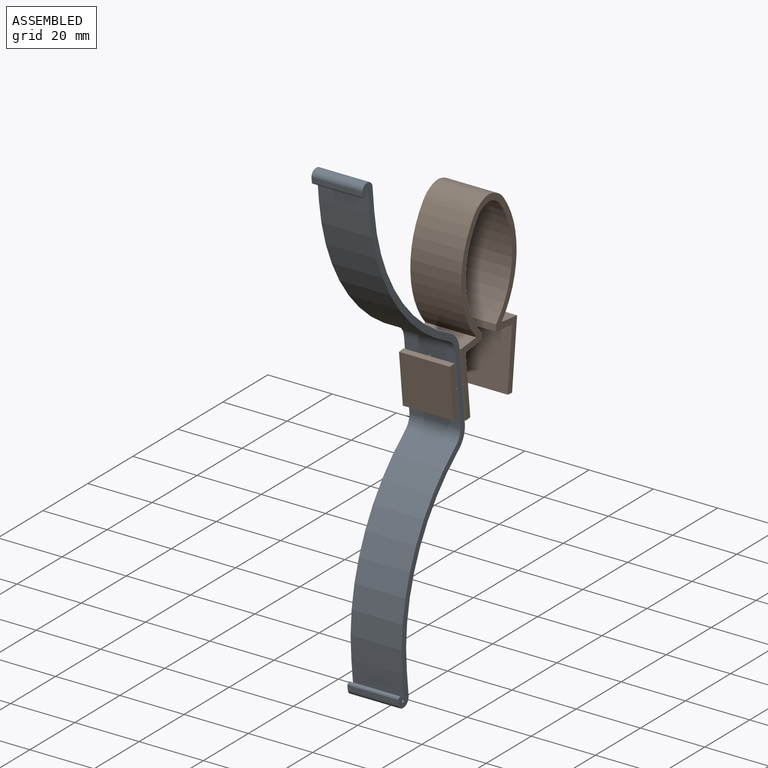
[diagram: assembled view]
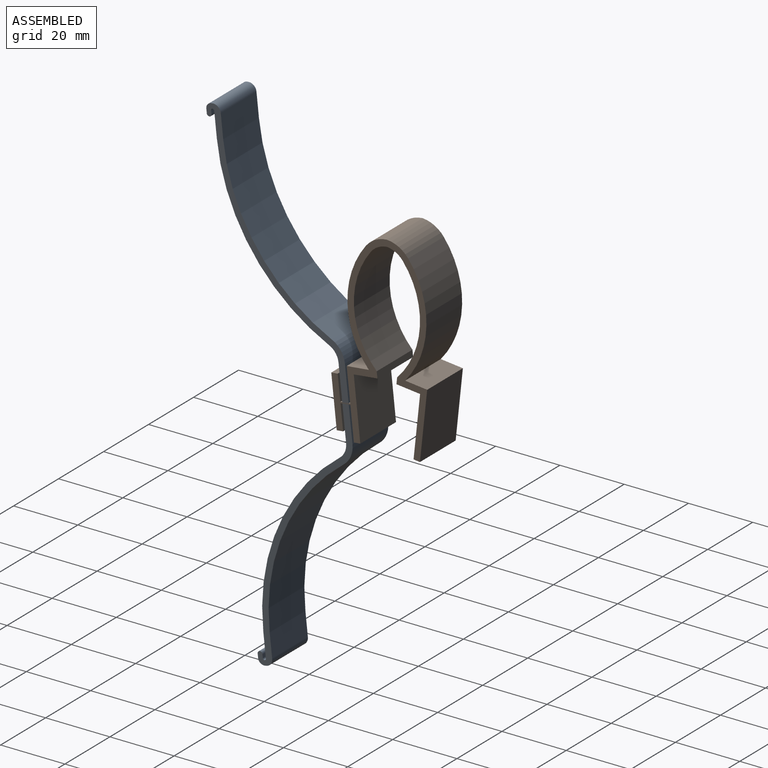
[diagram: assembled view, second angle]
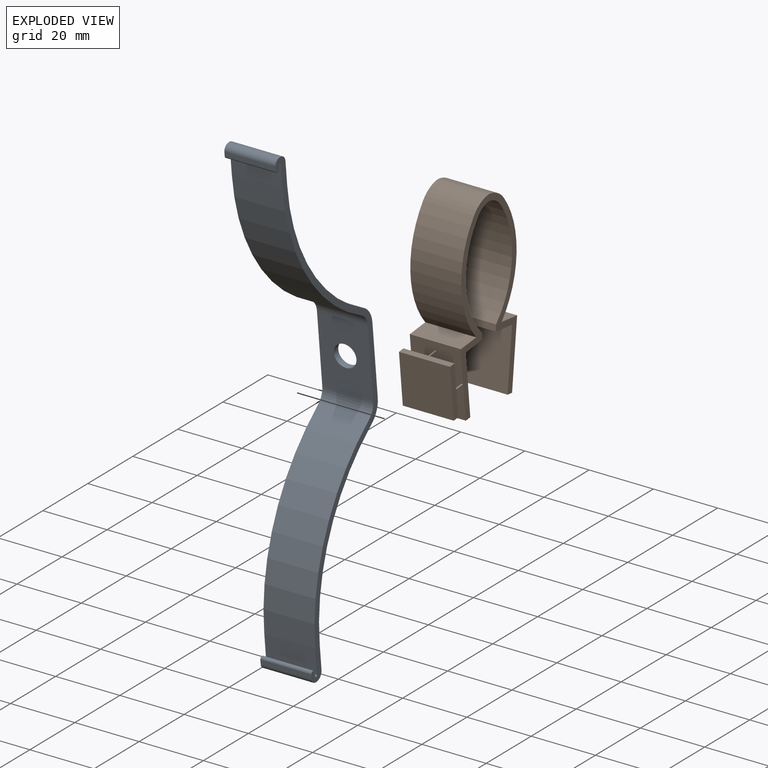
[diagram: exploded view]
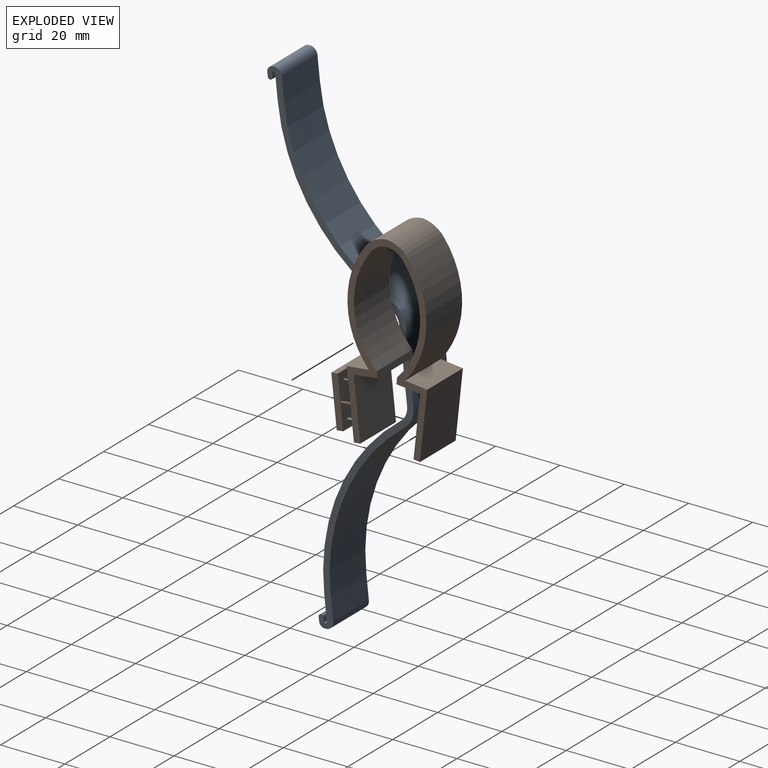
[diagram: exploded view, second angle]
ASSEMBLY  parts=2 mates=3
PART A: 31 faces, bbox 15.9x36.5x154.6 mm
  f0: plane 15.88x1.08mm, normal (0,1,0), area 17.2mm2, adj f9,f10,f15,f16
  f1: plane 15.88x7.55mm, normal (0,-1,0), area 119.8mm2, adj f2,f9,f10,f16
  f2: cylinder r=61.15mm len=52.35mm, axis (-1,0,0), area 997.7mm2, adj f1,f9,f10,f11
  f3: plane 22.18x15.88mm, normal (0,-1,0), area 313.2mm2, adj f9,f10,f11,f24,f30
  f4: plane 22.18x15.88mm, normal (0,1,0), area 313mm2, adj f9,f10,f14,f27,f30
  f5: cylinder r=59.15mm len=50.64mm, axis (-1,0,0), area 965mm2, adj f6,f9,f10,f14
  f6: plane 15.88x7.24mm, normal (0,1,0), area 114.9mm2, adj f5,f9,f10,f13
  f7: plane 15.88x0.39mm, normal (0,0,1), area 6.1mm2, adj f9,f10,f12,f13
  f8: plane 15.88x1.28mm, normal (0,-1,0), area 20.4mm2, adj f9,f10,f12,f15
  f9: plane 154.64x36.46mm, normal (1,0,0), area 365.1mm2, adj f0,f1,f2,f3,f4,f5,f6,f7
  f10: plane 154.64x36.46mm, normal (-1,0,0), area 365.1mm2, adj f0,f1,f2,f3,f4,f5,f6,f7
  f11: cylinder r=5.08mm len=15.88mm, axis (-1,0,0), area 82.9mm2, adj f2,f3,f9,f10
  f12: cylinder r=1.78mm len=15.88mm, axis (-1,0,0), area 44.3mm2, adj f7,f8,f9,f10
  f13: cylinder r=2.29mm len=15.88mm, axis (-1,0,0), area 57mm2, adj f6,f7,f9,f10
  f14: cylinder r=7.09mm len=15.88mm, axis (-1,0,0), area 115.6mm2, adj f4,f5,f9,f10
  f15: cylinder r=0.75mm len=15.88mm, axis (-1,0,0), area 37.4mm2, adj f0,f8,f9,f10
  f16: cylinder r=0.48mm len=15.88mm, axis (-1,0,0), area 23.8mm2, adj f0,f1,f9,f10
  f17: plane 15.88x1.08mm, normal (0,1,0), area 17.2mm2, adj f9,f10,f28,f29
  f18: plane 15.88x7.55mm, normal (0,-1,0), area 119.8mm2, adj f9,f10,f19,f29
  f19: cylinder r=61.15mm len=52.35mm, axis (-1,0,0), area 997.7mm2, adj f9,f10,f18,f24
  f20: cylinder r=59.15mm len=50.64mm, axis (-1,0,0), area 965mm2, adj f9,f10,f21,f27
  f21: plane 15.88x7.24mm, normal (0,1,0), area 114.9mm2, adj f9,f10,f20,f26
  f22: plane 15.88x0.39mm, normal (0,0,-1), area 6.1mm2, adj f9,f10,f25,f26
  f23: plane 15.88x1.28mm, normal (0,-1,0), area 20.4mm2, adj f9,f10,f25,f28
  f24: cylinder r=5.08mm len=15.88mm, axis (-1,0,0), area 82.9mm2, adj f3,f9,f10,f19
  f25: cylinder r=1.78mm len=15.88mm, axis (-1,0,0), area 44.3mm2, adj f9,f10,f22,f23
  f26: cylinder r=2.29mm len=15.88mm, axis (-1,0,0), area 57mm2, adj f9,f10,f21,f22
  f27: cylinder r=7.09mm len=15.88mm, axis (-1,0,0), area 115.6mm2, adj f4,f9,f10,f20
  f28: cylinder r=0.75mm len=15.88mm, axis (-1,0,0), area 37.4mm2, adj f9,f10,f17,f23
  f29: cylinder r=0.48mm len=15.88mm, axis (-1,0,0), area 23.8mm2, adj f9,f10,f17,f18
  f30: cylinder r=3.52mm len=7.05mm, axis (0,1,0), area 44.3mm2, adj f3,f4
PART B: 55 faces, bbox 15.9x29.8x59.8 mm
  f0: plane 15.88x15.78mm, normal (0,0.99,0.11), area 218.4mm2, adj f3,f5,f23,f24,f25,f27,f28,f29
  f1: plane 20.93x15.88mm, normal (0,-0.99,-0.11), area 300.6mm2, adj f2,f3,f5,f8,f23,f24,f25,f27
  f2: plane 15.88x1.99mm, normal (0,0.11,-0.99), area 31.8mm2, adj f1,f3,f5,f16
  f3: plane 59.8x29.84mm, normal (1,0,0), area 321.2mm2, adj f0,f1,f2,f4,f6,f7,f8,f9
  f4: plane 15.88x1.99mm, normal (0,-0.11,-0.99), area 31.8mm2, adj f3,f5,f11,f21
  f5: plane 59.8x29.84mm, normal (-1,0,0), area 321.2mm2, adj f0,f1,f2,f4,f6,f7,f8,f9
  f6: plane 15.88x6.88mm, normal (0,0.11,0.99), area 109.8mm2, adj f3,f5,f7,f11
  f7: cylinder r=27.38mm len=34.62mm, axis (1,0,0), area 595.2mm2, adj f3,f5,f6,f12
  f8: plane 15.88x6.88mm, normal (0,-0.11,0.99), area 109.8mm2, adj f1,f3,f5,f9
  f9: cylinder r=27.38mm len=34.62mm, axis (1,0,0), area 595.2mm2, adj f3,f5,f8,f10
  f10: cylinder r=9.08mm len=15.88mm, axis (1,0,0), area 122.1mm2, adj f3,f5,f9,f12
  f11: plane 20.93x15.88mm, normal (0,0.99,-0.11), area 334.2mm2, adj f3,f4,f5,f6
  f12: cylinder r=9.08mm len=15.88mm, axis (1,0,0), area 122.1mm2, adj f3,f5,f7,f10
  f13: cylinder r=25.38mm len=33.13mm, axis (1,0,0), area 574.1mm2, adj f3,f5,f14,f17
  f14: plane 15.88x1.99mm, normal (0,0.99,0.11), area 31.8mm2, adj f3,f5,f13,f15
  f15: plane 15.88x7.36mm, normal (0,0.11,-0.99), area 117.5mm2, adj f3,f5,f14,f16
  f16: plane 18.94x15.88mm, normal (0,0.99,0.11), area 302.4mm2, adj f2,f3,f5,f15
  f17: cylinder r=7.08mm len=15.88mm, axis (1,0,0), area 93.1mm2, adj f3,f5,f13,f22
  f18: cylinder r=25.38mm len=33.13mm, axis (1,0,0), area 574.1mm2, adj f3,f5,f19,f22
  f19: plane 15.88x1.99mm, normal (0,-0.99,0.11), area 31.8mm2, adj f3,f5,f18,f20
  f20: plane 15.88x7.36mm, normal (0,-0.11,-0.99), area 117.5mm2, adj f3,f5,f19,f21
  f21: plane 18.94x15.88mm, normal (0,-0.99,0.11), area 302.4mm2, adj f3,f4,f5,f20
  f22: cylinder r=7.08mm len=15.88mm, axis (1,0,0), area 93.1mm2, adj f3,f5,f17,f18
  f23: cylinder r=3.17mm len=6.64mm, axis (0,0.99,0.11), area 61.8mm2, adj f0,f1
  f24: plane 15.88x5.07mm, normal (0,-0.11,0.99), area 33mm2, adj f0,f1,f3,f5,f26,f41,f42
  f25: plane 15.88x5.07mm, normal (0,0.11,-0.99), area 33mm2, adj f0,f1,f3,f5,f26,f44,f45
  f26: plane 15.88x15.78mm, normal (0,-0.99,-0.11), area 252mm2, adj f3,f5,f24,f25
  f27: plane 3.08x0.6mm, normal (0,-0.11,0.99), area 1.9mm2, adj f0,f1,f3,f29
  f28: plane 3.08x0.6mm, normal (0,0.11,-0.99), area 1.9mm2, adj f0,f1,f3,f29
  f29: plane 3.13x0.73mm, normal (-1,0,0), area 1.2mm2, adj f0,f1,f27,f28
  f30: plane 3.08x0.6mm, normal (0,-0.11,0.99), area 1.9mm2, adj f0,f1,f5,f32
  f31: plane 3.08x0.6mm, normal (0,0.11,-0.99), area 1.9mm2, adj f0,f1,f5,f32
  f32: plane 3.13x0.73mm, normal (1,0,0), area 1.2mm2, adj f0,f1,f30,f31
  f33: plane 3.11x0.61mm, normal (0.71,-0.08,0.7), area 1.2mm2, adj f0,f1,f34,f35
  f34: plane 3.13x0.75mm, normal (-0.71,-0.08,0.7), area 1.9mm2, adj f0,f1,f33,f36
  f35: plane 3.13x0.75mm, normal (0.71,0.08,-0.7), area 1.9mm2, adj f0,f1,f33,f36
  f36: plane 3.11x0.61mm, normal (-0.71,0.08,-0.7), area 1.2mm2, adj f0,f1,f34,f35
  f37: plane 3.13x0.75mm, normal (-0.71,-0.08,0.7), area 1.9mm2, adj f0,f1,f38,f40
  f38: plane 3.11x0.61mm, normal (-0.71,0.08,-0.7), area 1.2mm2, adj f0,f1,f37,f39
  f39: plane 3.13x0.75mm, normal (0.71,0.08,-0.7), area 1.9mm2, adj f0,f1,f38,f40
  f40: plane 3.11x0.61mm, normal (0.71,-0.08,0.7), area 1.2mm2, adj f0,f1,f37,f39
  f41: plane 3.15x0.93mm, normal (-1,0,0), area 1.9mm2, adj f0,f1,f24,f43
  f42: plane 3.15x0.93mm, normal (1,0,0), area 1.9mm2, adj f0,f1,f24,f43
  f43: plane 3.08x0.4mm, normal (0,0.11,-0.99), area 1.2mm2, adj f0,f1,f41,f42
  f44: plane 3.15x0.93mm, normal (-1,0,0), area 1.9mm2, adj f0,f1,f25,f46
  f45: plane 3.15x0.93mm, normal (1,0,0), area 1.9mm2, adj f0,f1,f25,f46
  f46: plane 3.08x0.4mm, normal (0,-0.11,0.99), area 1.2mm2, adj f0,f1,f44,f45
  f47: plane 3.11x0.61mm, normal (-0.71,-0.08,0.7), area 1.2mm2, adj f0,f1,f48,f49
  f48: plane 3.13x0.75mm, normal (-0.71,0.08,-0.7), area 1.9mm2, adj f0,f1,f47,f50
  f49: plane 3.13x0.75mm, normal (0.71,-0.08,0.7), area 1.9mm2, adj f0,f1,f47,f50
  f50: plane 3.11x0.61mm, normal (0.71,0.08,-0.7), area 1.2mm2, adj f0,f1,f48,f49
  f51: plane 3.13x0.75mm, normal (-0.71,0.08,-0.7), area 1.9mm2, adj f0,f1,f52,f54
  f52: plane 3.11x0.61mm, normal (0.71,0.08,-0.7), area 1.2mm2, adj f0,f1,f51,f53
  f53: plane 3.13x0.75mm, normal (0.71,-0.08,0.7), area 1.9mm2, adj f0,f1,f52,f54
  f54: plane 3.11x0.61mm, normal (-0.71,-0.08,0.7), area 1.2mm2, adj f0,f1,f51,f53
PLACE A rot(axis=(1,0,0),6.1deg) t=(-1.29,-23.03,-9.62)mm
PLACE B t=(-1.29,-11.13,-0.34)mm fixed
MATE cylindrical A.f30 <-> B.f23  axis (0,0.99,0.11) through (-1.29,-24.02,-9.73)mm
MATE fastened B.f23 <-> A.f30  axis (0,-0.99,-0.11) through (-1.29,-22.53,-9.57)mm
MATE parallel A.f9 <-> B.f3  axis (1,0,0) through (6.65,-43.19,-11.78)mm
